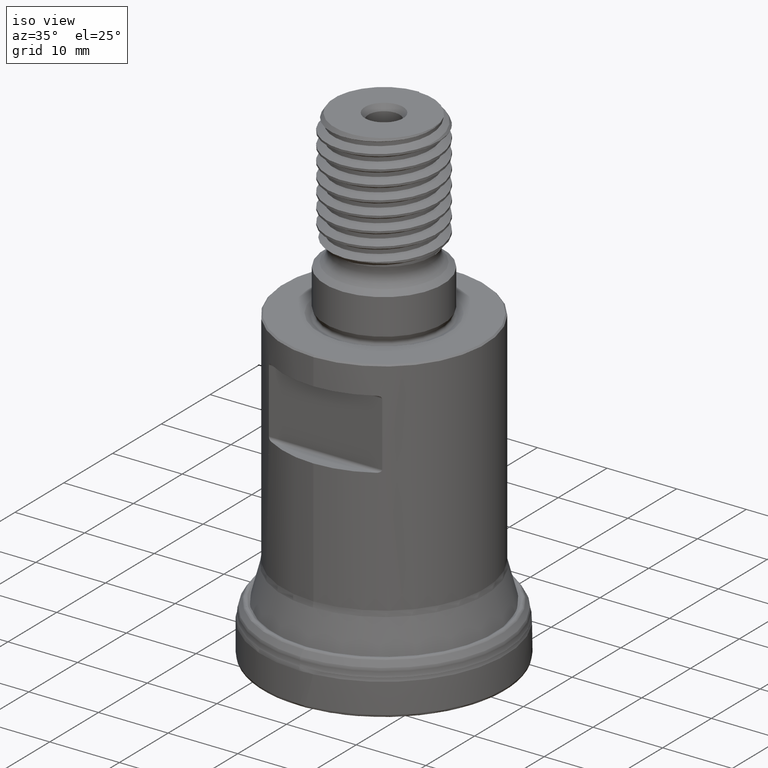
[diagram: clean part render]
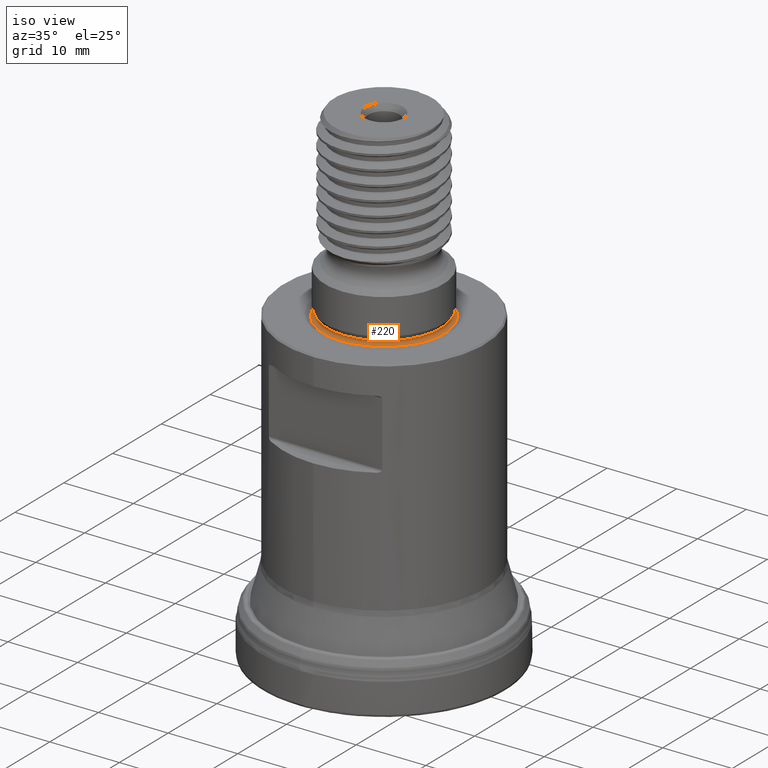
[diagram: same view with one face highlighted and labeled with its STEP entity id]
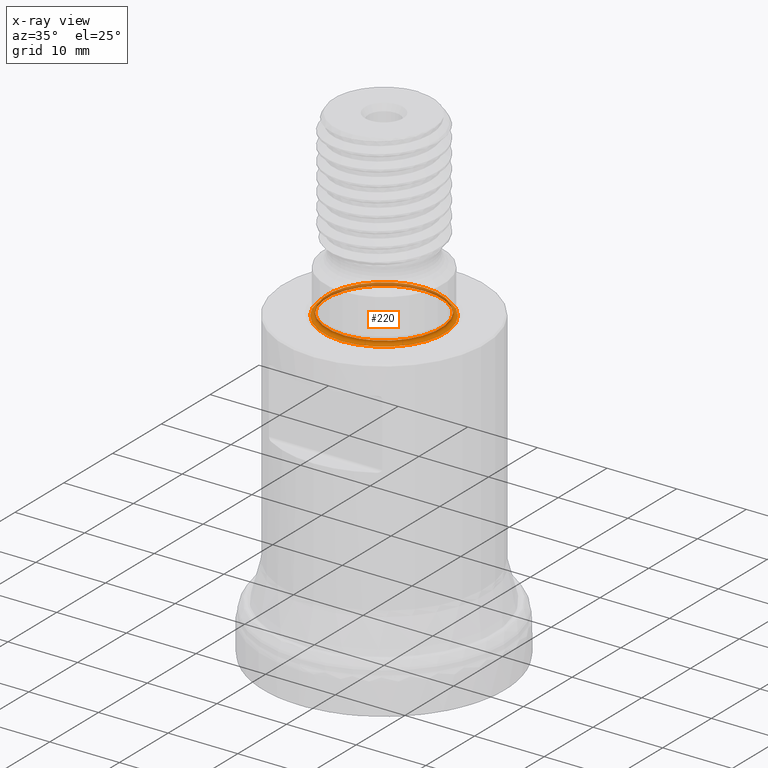
[diagram: x-ray of the same camera — body ghosted, the highlighted face saturated]
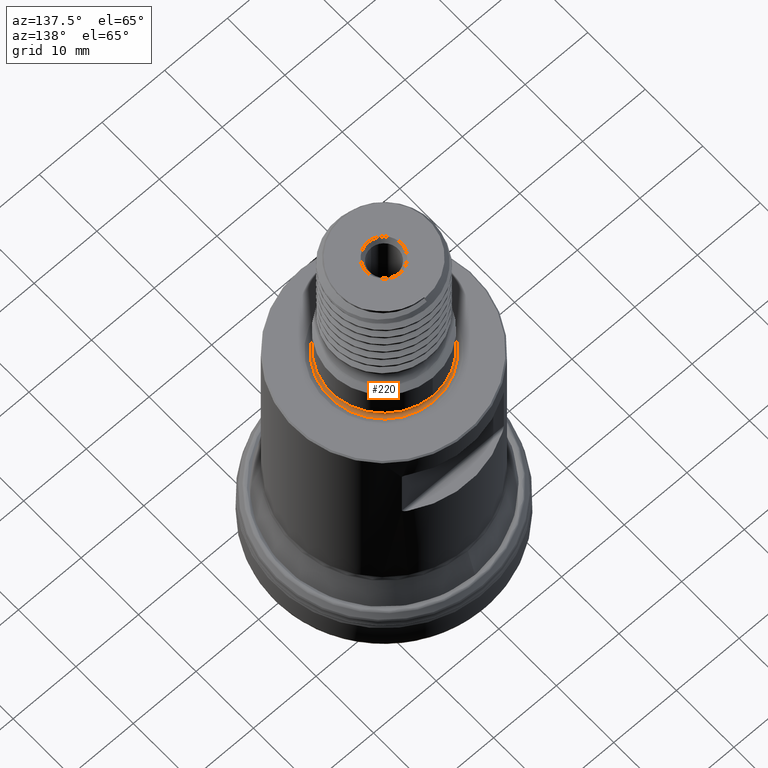
[diagram: same view with one face highlighted and labeled with its STEP entity id]
A machine part, iso view. The second image highlights one B-rep face of the part: STEP entity #220.
The next image is the same camera in x-ray: the body ghosted, the highlighted face saturated — about 27% of this face is hidden behind the body in this view.
A second angle (auxiliary view) of the same face is appended — the face is thin or edge-on in the first view.
In plain terms, the highlighted toroidal blend (fillet) surface has major radius 8.5 mm and minor (blend) radius 0.4 mm.
Its self-contained STEP definition (entity closure, byte-faithful):
#179=TOROIDAL_SURFACE('',#1019,8.5,0.400000000000001);
#220=ADVANCED_FACE('',(#350,#351),#179,.F.);
#350=FACE_BOUND('',#446,.T.);
#351=FACE_BOUND('',#447,.T.);
#446=EDGE_LOOP('',(#581));
#447=EDGE_LOOP('',(#582));
#581=ORIENTED_EDGE('',*,*,#820,.F.);
#582=ORIENTED_EDGE('',*,*,#821,.T.);
#742=VERTEX_POINT('',#2043);
#743=VERTEX_POINT('',#2046);
#820=EDGE_CURVE('',#742,#742,#889,.T.);
#821=EDGE_CURVE('',#743,#743,#890,.T.);
#889=CIRCLE('',#1016,8.14519566672871);
#890=CIRCLE('',#1018,8.68469944529401);
#1016=AXIS2_PLACEMENT_3D('',#2042,#1158,#1159);
#1018=AXIS2_PLACEMENT_3D('',#2045,#1162,#1163);
#1019=AXIS2_PLACEMENT_3D('',#2047,#1164,#1165);
#1158=DIRECTION('',(1.17145536458252E-15,1.17145536458252E-15,1.));
#1159=DIRECTION('',(0.,1.,-8.51900210605259E-16));
#1162=DIRECTION('',(1.17145536458252E-15,1.17145536458252E-15,1.));
#1163=DIRECTION('',(0.,1.,-7.98979164174439E-16));
#1164=DIRECTION('',(1.17145536458252E-15,1.17145536458252E-15,1.));
#1165=DIRECTION('',(0.,1.,-1.55930200087803E-15));
#2042=CARTESIAN_POINT('',(5.22875581117183E-14,5.22875581117183E-14,44.634699445294));
#2043=CARTESIAN_POINT('',(5.22875581117183E-14,8.14519566672876,44.634699445294));
#2045=CARTESIAN_POINT('',(5.16555535161054E-14,5.16555535161054E-14,44.0951956667287));
#2046=CARTESIAN_POINT('',(5.16555535161054E-14,8.68469944529407,44.0951956667287));
#2047=CARTESIAN_POINT('',(5.20711909556932E-14,5.20711909556932E-14,44.45));